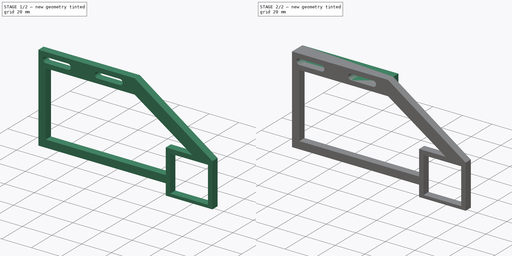
[diagram: build sequence overview — one tinted view per stage of 2, left to right]
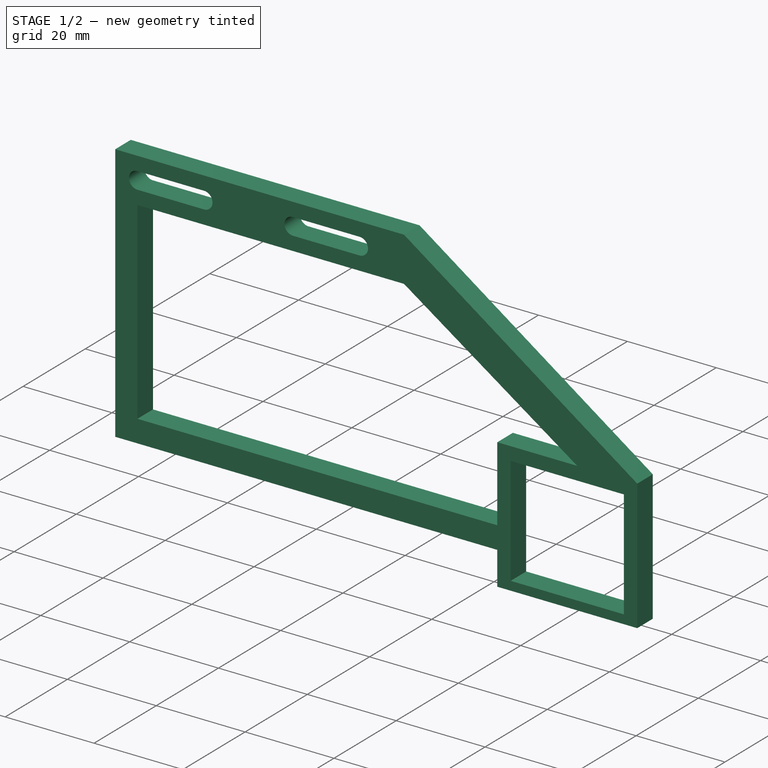
[diagram: stage 1 of 2 — iso view after this stage's code; geometry added in this stage tinted green]
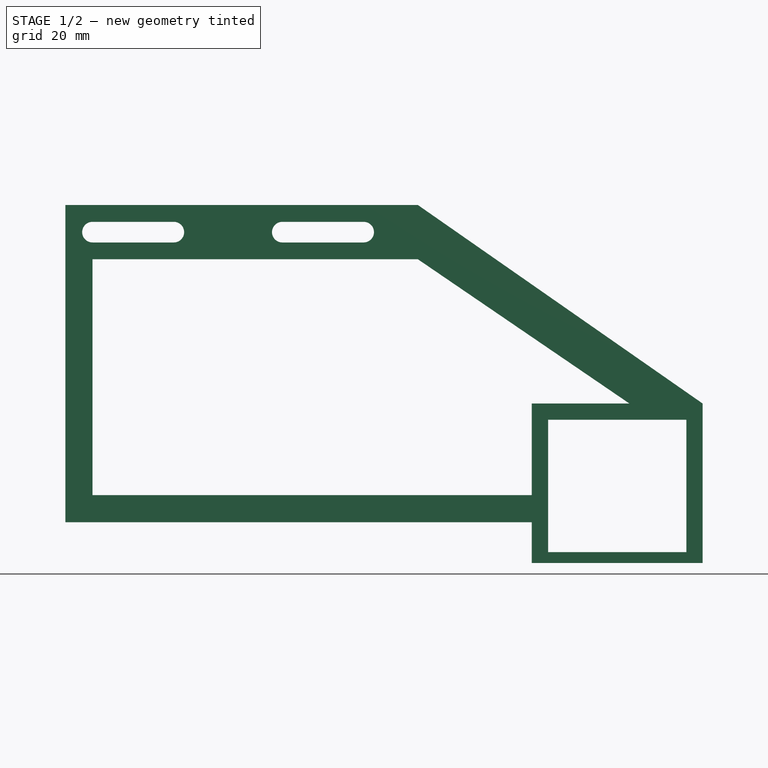
[diagram: stage 1 of 2 — front view after this stage's code; geometry added in this stage tinted green]
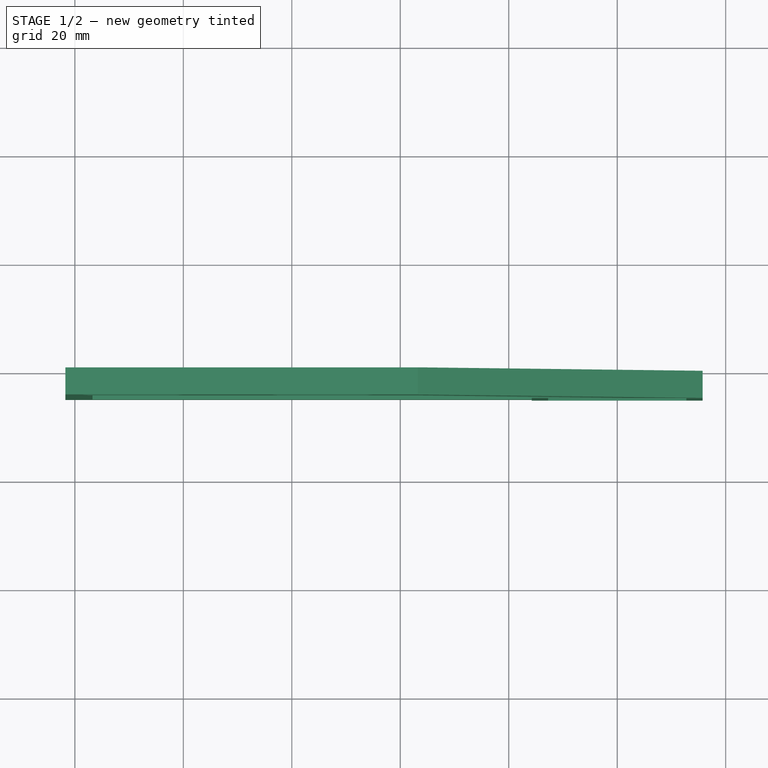
[diagram: stage 1 of 2 — top view after this stage's code; geometry added in this stage tinted green]
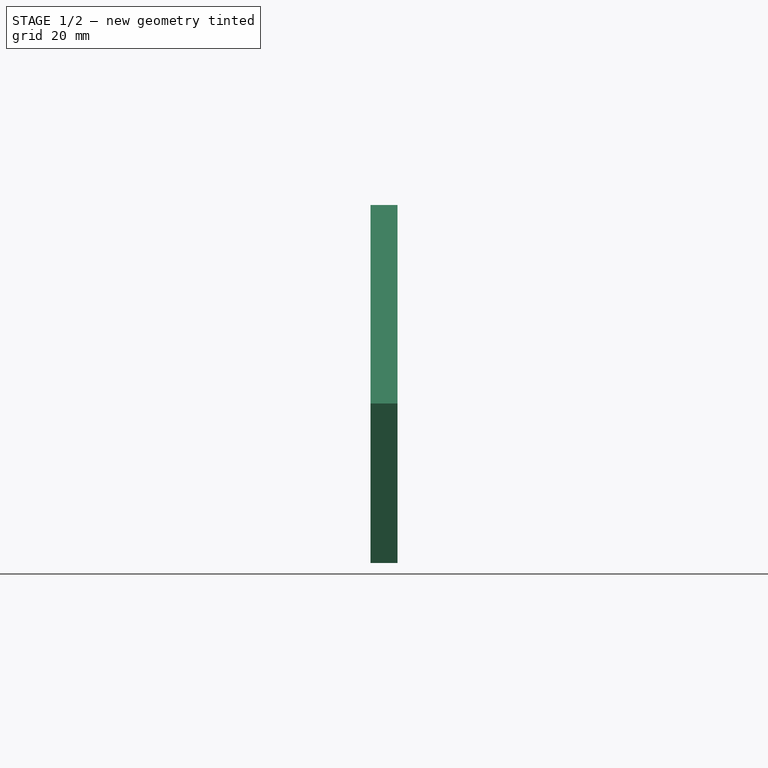
[diagram: stage 1 of 2 — right view after this stage's code; geometry added in this stage tinted green]
FCSTD DOCUMENT  (FreeCAD 0.21R33668 +26 (Git))
Label: cover_camera
License: All rights reserved
LicenseURL: https://en.wikipedia.org/wiki/All_rights_reserved
objects: Sketcher::SketchObject×2, PartDesign::Pad×2, PartDesign::Body×1
note: 7 computed .brp shape members not serialized (recipe doc carries the construction recipe); baked Part::Feature solids carry a one-line shape summary decoded from their .brp

FEATURE [Sketcher::SketchObject] Sketch
  FullyConstrained = true
  MapMode = 5
  Placement = pos=(0,0,0) rot=(1,0,0;1.5708rad)
  Support = -> [XZ_Plane]
  sketch-geometry (26):
    g0: LineSegment StartX=-12.75 StartY=12.2 StartZ=0 EndX=12.75 EndY=12.2 EndZ=0
    g1: LineSegment StartX=12.75 StartY=12.2 StartZ=0 EndX=12.75 EndY=-12.2 EndZ=0
    g2: LineSegment StartX=12.75 StartY=-12.2 StartZ=0 EndX=-12.75 EndY=-12.2 EndZ=0
    g3: LineSegment StartX=-12.75 StartY=-12.2 StartZ=0 EndX=-12.75 EndY=12.2 EndZ=0
    g4: LineSegment StartX=-15.75 StartY=-14.2 StartZ=0 EndX=15.75 EndY=-14.2 EndZ=0
    g5: LineSegment StartX=15.75 StartY=-14.2 StartZ=0 EndX=15.75 EndY=15.2 EndZ=0
    g6: LineSegment StartX=15.75 StartY=15.2 StartZ=0 EndX=-36.75 EndY=51.8 EndZ=0
    g7: LineSegment StartX=-36.75 StartY=51.8 StartZ=0 EndX=-101.75 EndY=51.8 EndZ=0
    g8: LineSegment StartX=-101.75 StartY=51.8 StartZ=0 EndX=-101.75 EndY=41.8 EndZ=0
    g9: LineSegment StartX=-15.75 StartY=15.2 StartZ=0 EndX=2.25 EndY=15.2 EndZ=0
    g10: LineSegment StartX=2.25 StartY=15.2 StartZ=0 EndX=-36.75 EndY=41.8 EndZ=0
    g11: ArcOfCircle CenterX=-96.75 CenterY=46.8 CenterZ=0 NormalX=0 NormalY=0 NormalZ=1 AngleXU=0 Radius=1.9 StartAngle=1.5708 EndAngle=4.71239
    g12: ArcOfCircle CenterX=-81.75 CenterY=46.8 CenterZ=0 NormalX=0 NormalY=0 NormalZ=1 AngleXU=0 Radius=1.9 StartAngle=4.71239 EndAngle=7.85398
    g13: LineSegment StartX=-96.75 StartY=44.9 StartZ=0 EndX=-81.75 EndY=44.9 EndZ=0
    g14: LineSegment StartX=-81.75 StartY=48.7 StartZ=0 EndX=-96.75 EndY=48.7 EndZ=0
    g15: ArcOfCircle CenterX=-61.75 CenterY=46.8 CenterZ=0 NormalX=0 NormalY=0 NormalZ=1 AngleXU=0 Radius=1.9 StartAngle=1.5708 EndAngle=4.71239
    g16: ArcOfCircle CenterX=-46.75 CenterY=46.8 CenterZ=0 NormalX=0 NormalY=0 NormalZ=1 AngleXU=0 Radius=1.9 StartAngle=4.71239 EndAngle=7.85398
    g17: LineSegment StartX=-61.75 StartY=44.9 StartZ=0 EndX=-46.75 EndY=44.9 EndZ=0
    g18: LineSegment StartX=-46.75 StartY=48.7 StartZ=0 EndX=-61.75 EndY=48.7 EndZ=0
    g19: LineSegment StartX=-15.75 StartY=-14.2 StartZ=0 EndX=-15.75 EndY=-6.7 EndZ=0
    g20: LineSegment StartX=-15.75 StartY=-6.7 StartZ=0 EndX=-101.75 EndY=-6.7 EndZ=0
    g21: LineSegment StartX=-101.75 StartY=-6.7 StartZ=0 EndX=-101.75 EndY=41.8 EndZ=0
    g22: LineSegment StartX=-36.75 StartY=41.8 StartZ=0 EndX=-96.75 EndY=41.8 EndZ=0
    g23: LineSegment StartX=-96.75 StartY=41.8 StartZ=0 EndX=-96.75 EndY=-1.7 EndZ=0
    g24: LineSegment StartX=-96.75 StartY=-1.7 StartZ=0 EndX=-15.75 EndY=-1.7 EndZ=0
    g25: LineSegment StartX=-15.75 StartY=-1.7 StartZ=0 EndX=-15.75 EndY=15.2 EndZ=0
  constraints (74):
    c: Coincident(g0,g1)
    c: Coincident(g1,g2)
    c: Coincident(g2,g3)
    c: Coincident(g3,g0)
    c: Horizontal(g0)
    c: Horizontal(g2)
    c: Vertical(g1)
    c: Vertical(g3)
    c: DistanceY(g1,g1) = 24.4
    c: DistanceX(g0,g0) = 25.5
    c: DistanceX(g-1,g0) = 12.75
    c: DistanceY(g-1,g0) = 12.2
    c: Horizontal(g4)
    c: Coincident(g4,g5)
    c: Vertical(g5)
    c: Coincident(g5,g6)
    c: Coincident(g6,g7)
    c: Horizontal(g7)
    c: Coincident(g7,g8)
    c: DistanceY(g4,g1) = 2
    c: DistanceY(g0,g5) = 3
    c: DistanceX(g0,g5) = 3
    c: DistanceX(g4,g2) = 3
    c: DistanceY(g0,g9) = 3
    c: Vertical(g8)
    c: Coincident(g9,g10)
    c: Horizontal(g9)
    c: DistanceY(g8,g8) = 10
    c: Tangent(g11,g13) = -1.5708
    c: Tangent(g13,g12) = -1.5708
    c: Tangent(g12,g14) = -1.5708
    c: Tangent(g14,g11) = -1.5708
    c: Equal(g11,g12)
    c: Horizontal(g13)
    c: Tangent(g15,g17) = -1.5708
    c: Tangent(g17,g16) = -1.5708
    c: Tangent(g16,g18) = -1.5708
    c: Tangent(g18,g15) = -1.5708
    c: Equal(g15,g16)
    c: Horizontal(g17)
    c: DistanceY(g2,g16) = 59
    c: DistanceY(g16,g6) = 5
    c: DistanceY(g16,g16) = 3.8
    c: Horizontal(g12,g15)
    c: Horizontal(g12,g15)
    c: DistanceX(g10,g2) = 24
    c: Vertical(g6,g10)
    c: DistanceX(g9,g5) = 13.5
    c: DistanceX(g7,g7) = 65
    c: DistanceX(g7,g11) = 5
    c: DistanceX(g11,g12) = 15
    c: DistanceX(g15,g16) = 15
    c: DistanceX(g11,g15) = 35
    c: Coincident(g4,g19)
    c: Vertical(g19)
    c: Coincident(g19,g20)
    c: Horizontal(g20)
    c: Coincident(g20,g21)
    c: Coincident(g21,g8)
    c: Vertical(g21)
    c: Coincident(g10,g22)
    c: Horizontal(g22)
    c: Coincident(g22,g23)
    c: Vertical(g23)
    c: Coincident(g23,g24)
    c: Horizontal(g24)
    c: Coincident(g24,g25)
    c: Coincident(g25,g9)
    c: Vertical(g25)
    c: Vertical(g24,g19)
    c: DistanceY(g19,g24) = 5
    c: DistanceX(g8,g22) = 5
    c: DistanceY(g4,g19) = 7.5
    c: DistanceY(g10,g6) = 10
FEATURE [PartDesign::Pad] Pad
  Direction = (0,-1,2e-16)
  Length = 5
  Length2 = 10
  Placement = pos=(0,0,0) rot=(1,0,0;1.5708rad)
  Profile = -> Sketch
  ReferenceAxis = -> Sketch [N_Axis]
  Type = 0
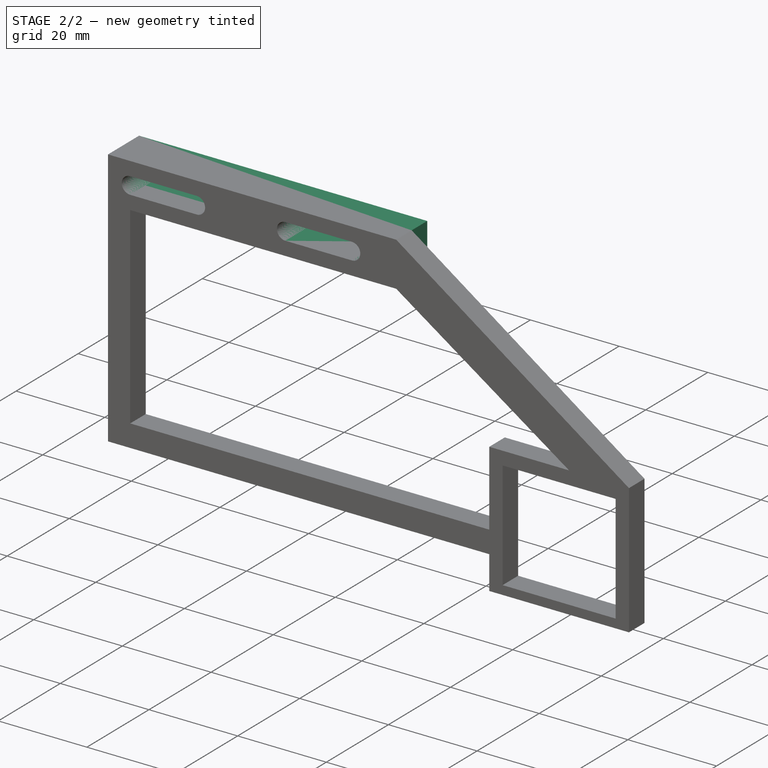
[diagram: stage 2 of 2 — iso view after this stage's code; geometry added in this stage tinted green]
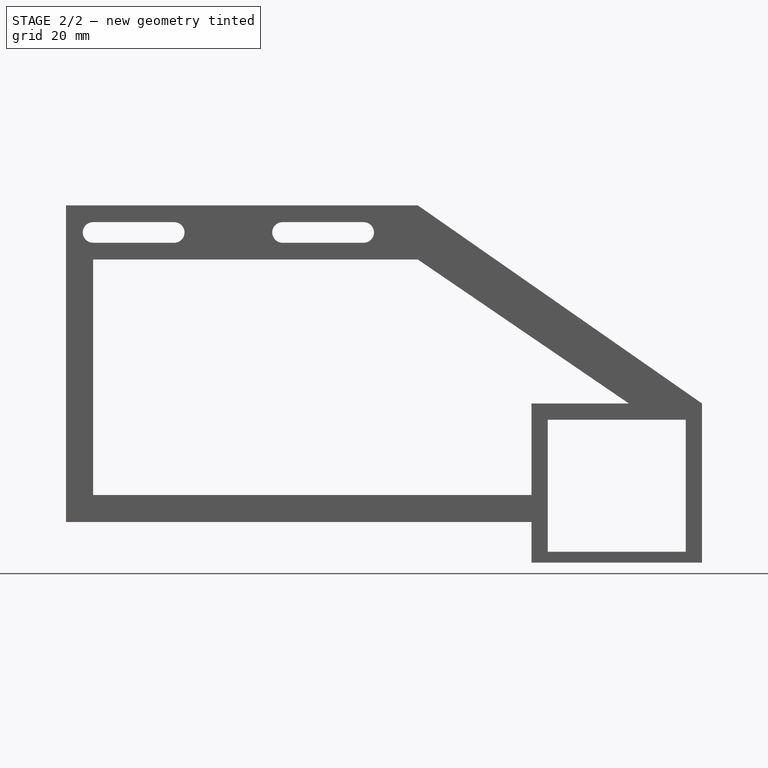
[diagram: stage 2 of 2 — front view after this stage's code; geometry added in this stage tinted green]
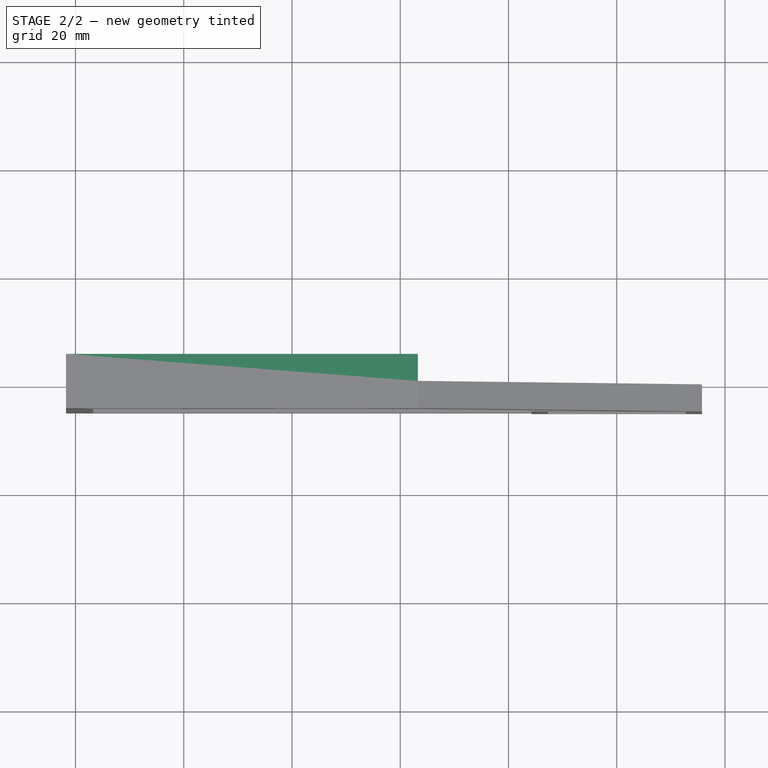
[diagram: stage 2 of 2 — top view after this stage's code; geometry added in this stage tinted green]
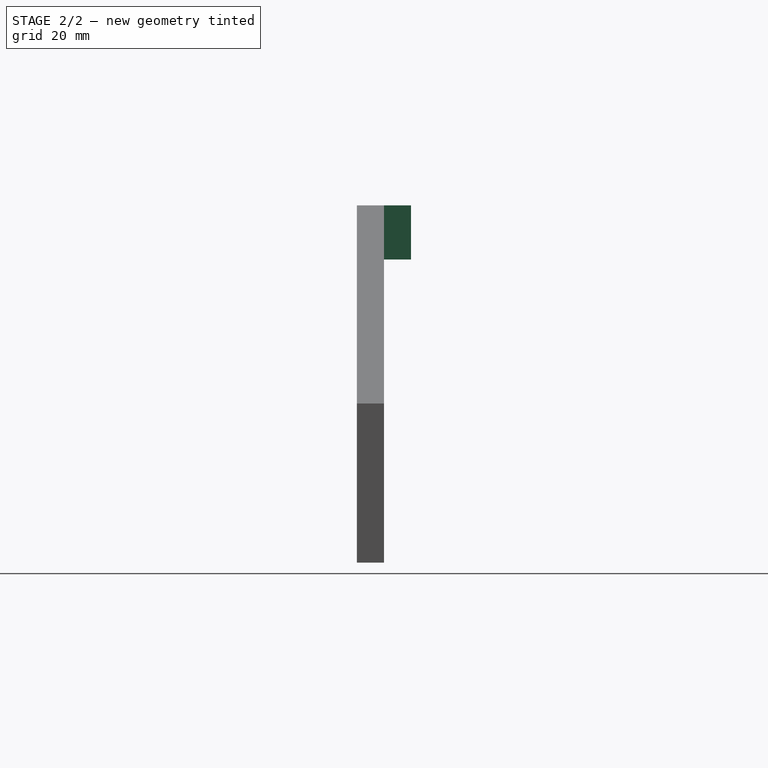
[diagram: stage 2 of 2 — right view after this stage's code; geometry added in this stage tinted green]
FEATURE [Sketcher::SketchObject] Sketch001
  ExternalGeometry = -> [Pad]
  FullyConstrained = false
  MapMode = 5
  Placement = pos=(0,0,0) rot=(-1,0,0;1.5708rad)
  Support = -> [Pad]
  sketch-geometry (12):
    g0: LineSegment StartX=-101.75 StartY=-51.8 StartZ=0 EndX=-36.75 EndY=-51.8 EndZ=0
    g1: LineSegment StartX=-36.75 StartY=-51.8 StartZ=0 EndX=-36.75 EndY=-41.8 EndZ=0
    g2: LineSegment StartX=-36.75 StartY=-41.8 StartZ=0 EndX=-101.75 EndY=-41.8 EndZ=0
    g3: LineSegment StartX=-101.75 StartY=-41.8 StartZ=0 EndX=-101.75 EndY=-51.8 EndZ=0
    g4: ArcOfCircle CenterX=-96.75 CenterY=-46.8 CenterZ=0 NormalX=0 NormalY=0 NormalZ=1 AngleXU=0 Radius=1.9 StartAngle=1.57077 EndAngle=4.71236
    g5: ArcOfCircle CenterX=-81.7581 CenterY=-46.8005 CenterZ=0 NormalX=0 NormalY=0 NormalZ=1 AngleXU=0 Radius=1.9 StartAngle=4.71236 EndAngle=7.85395
    g6: LineSegment StartX=-96.7501 StartY=-48.7 StartZ=0 EndX=-81.7582 EndY=-48.7005 EndZ=0
    g7: LineSegment StartX=-81.758 StartY=-44.9005 StartZ=0 EndX=-96.7499 EndY=-44.9 EndZ=0
    g8: ArcOfCircle CenterX=-61.75 CenterY=-46.8 CenterZ=0 NormalX=0 NormalY=0 NormalZ=1 AngleXU=0 Radius=1.9 StartAngle=1.5708 EndAngle=4.71239
    g9: ArcOfCircle CenterX=-46.75 CenterY=-46.8 CenterZ=0 NormalX=0 NormalY=0 NormalZ=1 AngleXU=0 Radius=1.9 StartAngle=4.71239 EndAngle=7.85398
    g10: LineSegment StartX=-61.75 StartY=-48.7 StartZ=0 EndX=-46.75 EndY=-48.7 EndZ=0
    g11: LineSegment StartX=-46.75 StartY=-44.9 StartZ=0 EndX=-61.75 EndY=-44.9 EndZ=0
  constraints (26):
    c: Coincident(g0,g1)
    c: Coincident(g1,g2)
    c: Coincident(g2,g3)
    c: Coincident(g3,g0)
    c: Horizontal(g0)
    c: Horizontal(g2)
    c: Vertical(g1)
    c: Vertical(g3)
    c: Coincident(g0,g-4)
    c: Coincident(g1,g-3)
    c: Tangent(g4,g6) = -1.5708
    c: Tangent(g6,g5) = -1.5708
    c: Tangent(g5,g7) = -1.5708
    c: Tangent(g7,g4) = -1.5708
    c: Equal(g4,g5)
    c: Coincident(g4,g-8)
    c: Horizontal(g4,g-8)
    c: Tangent(g8,g10) = -1.5708
    c: Tangent(g10,g9) = -1.5708
    c: Tangent(g9,g11) = -1.5708
    c: Tangent(g11,g8) = -1.5708
    c: Equal(g8,g9)
    c: Coincident(g8,g-10)
    c: Horizontal(g-11,g8)
    c: Vertical(g9,g-12)
    c: Horizontal(g-12,g9)
FEATURE [PartDesign::Pad] Pad001
  BaseFeature = -> Pad
  Direction = (0,1,-2e-16)
  Length = 5
  Length2 = 10
  Placement = pos=(0,0,0) rot=(1,0,0;1.5708rad)
  Profile = -> Sketch001
  ReferenceAxis = -> Sketch001 [N_Axis]
  Refine = true
  Type = 0
FEATURE [PartDesign::Body] Body
  Group = -> [Sketch,Pad,Sketch001,Pad001]
  Origin = -> Origin
  Tip = -> Pad001
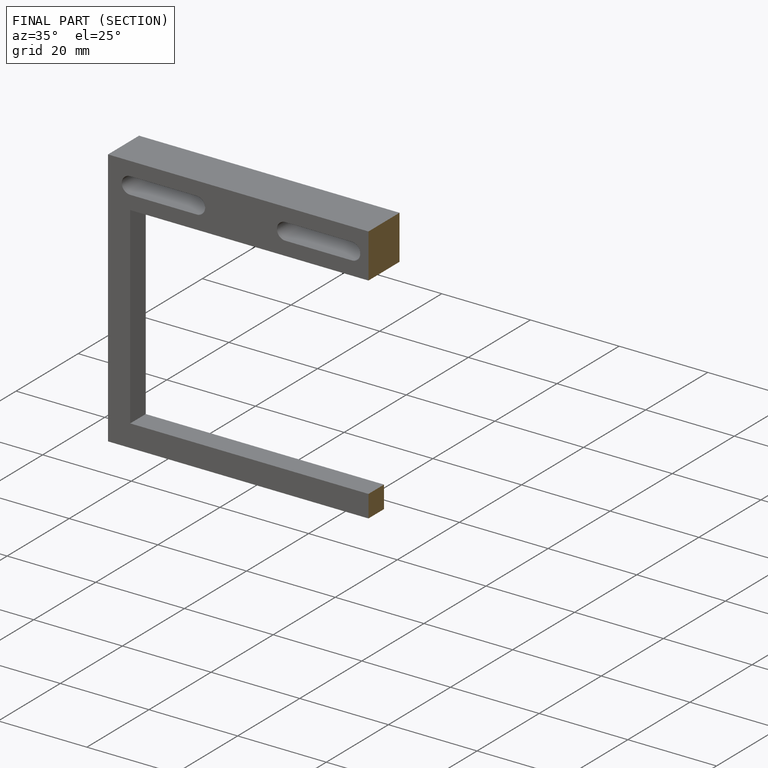
[diagram: finished part — half-section view (interior)]
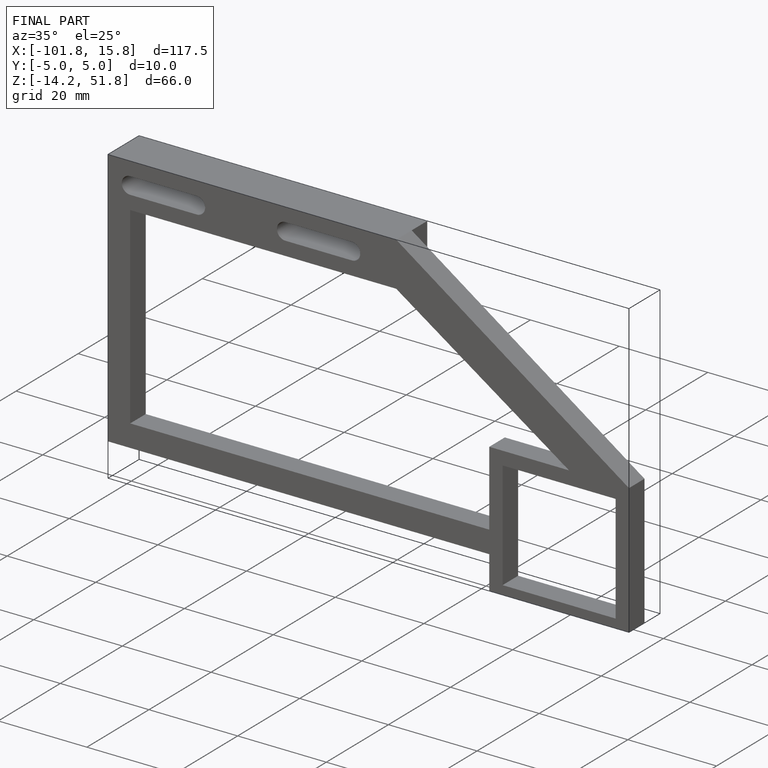
[diagram: finished part — iso view with bounding-box wireframe]
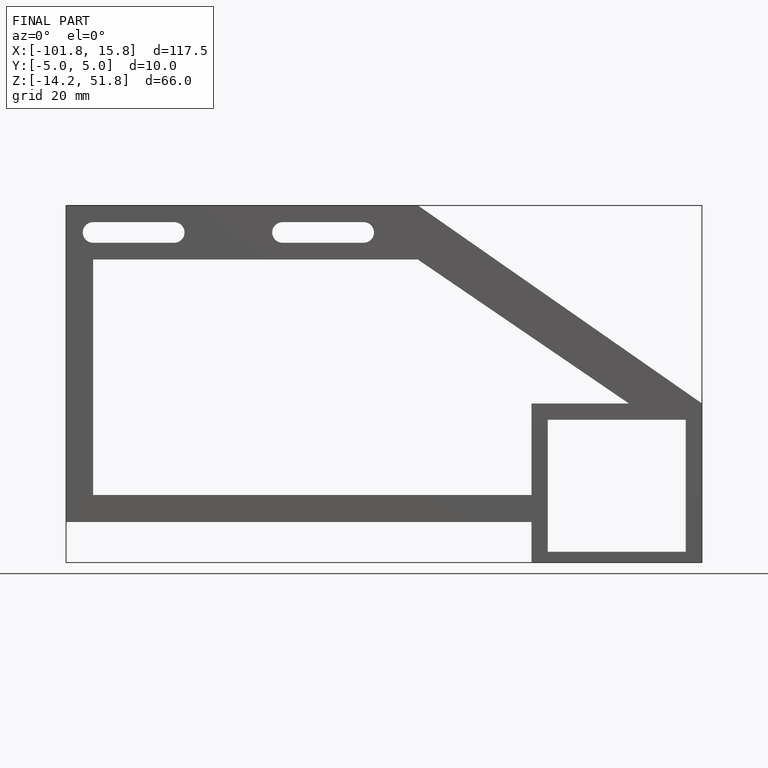
[diagram: finished part — front view with bounding-box wireframe]
